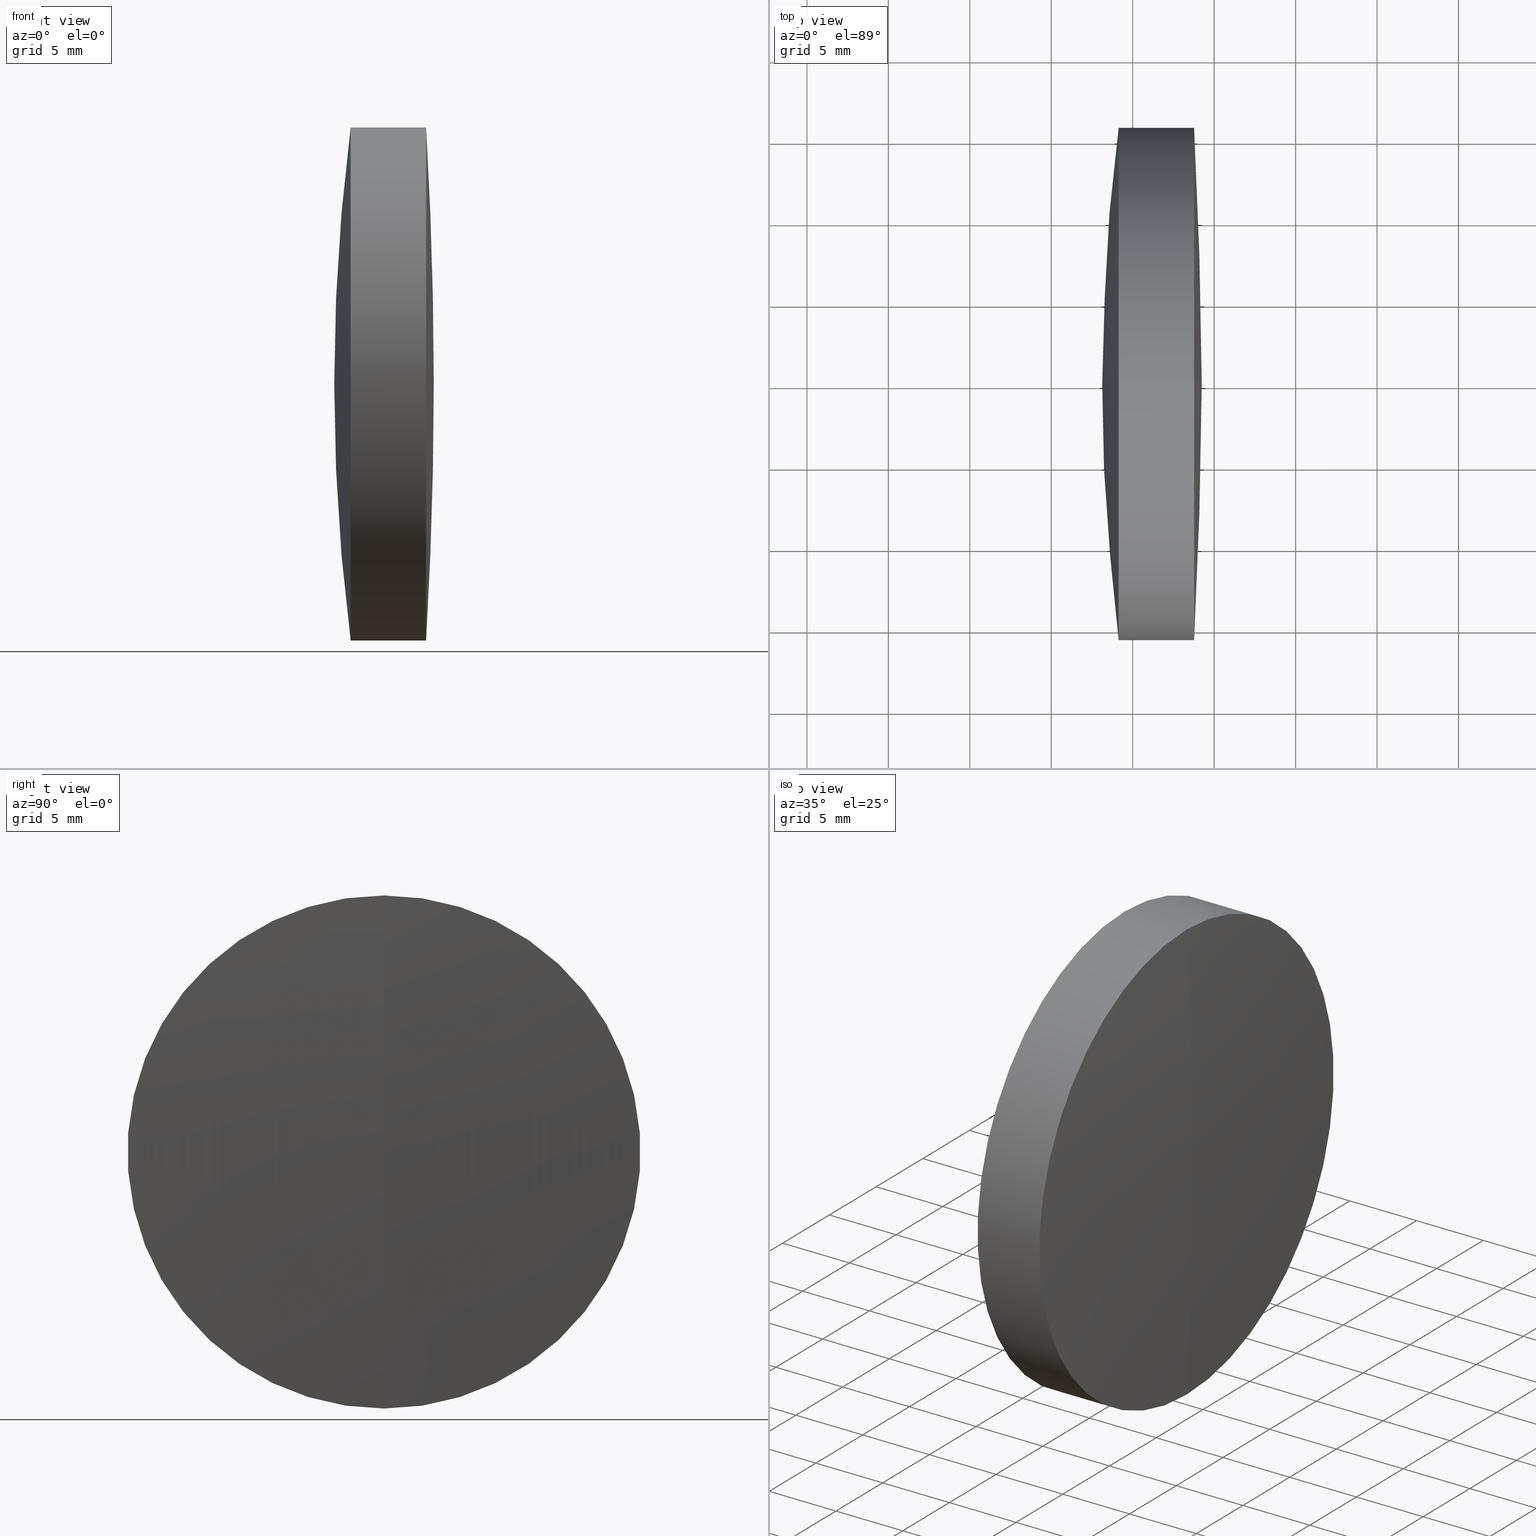
[diagram: canonical four-view strip — front | top / right | iso, engineering-drawing reading convention]
A machine part, canonical four-view strip (front | top / right | iso — engineering-drawing reading convention). The complete STEP part file that produces these views, byte-faithful:
ISO-10303-21;
HEADER;
FILE_DESCRIPTION (( 'STEP AP214' ),
    '1' );
FILE_NAME ('145070.STEP',
    '2019-05-15T05:07:34',
    ( 'user' ),
    ( '΢���й�' ),
    'SwSTEP 2.0',
    'SolidWorks 2016',
    '' );
FILE_SCHEMA (( 'AUTOMOTIVE_DESIGN' ));
ENDSEC;

DATA;
#1 = DIRECTION ( 'NONE',  ( 0.0000000000000000000, -1.224646799147353200E-016, 1.000000000000000000 ) ) ;
#2 = VERTEX_POINT ( 'NONE', #147 ) ;
#3 = EDGE_LOOP ( 'NONE', ( #88, #239, #39 ) ) ;
#4 =( GEOMETRIC_REPRESENTATION_CONTEXT ( 3 ) GLOBAL_UNCERTAINTY_ASSIGNED_CONTEXT ( ( #298 ) ) GLOBAL_UNIT_ASSIGNED_CONTEXT ( ( #202, #297, #296 ) ) REPRESENTATION_CONTEXT ( 'NONE', 'WORKASPACE' ) );
#5 = CARTESIAN_POINT ( 'NONE',  ( -0.5519199926577972300, 0.0000000000000000000, 15.74999999999999300 ) ) ;
#6 = ADVANCED_FACE ( 'NONE', ( #157 ), #175, .T. ) ;
#7 = CARTESIAN_POINT ( 'NONE',  ( 180.9032281870270000, 0.0000000000000000000, 2.168404344971008900E-016 ) ) ;
#8 = EDGE_LOOP ( 'NONE', ( #80, #92, #136 ) ) ;
#9 = DIRECTION ( 'NONE',  ( 0.0000000000000000000, 1.000000000000000000, 0.0000000000000000000 ) ) ;
#10 = VERTEX_POINT ( 'NONE', #319 ) ;
#11 = CARTESIAN_POINT ( 'NONE',  ( 180.9032281870270000, 0.0000000000000000000, 2.168404344971008900E-016 ) ) ;
#12 = LINE ( 'NONE', #311, #223 ) ;
#13 = CIRCLE ( 'NONE', #116, 81.33599999999999900 ) ;
#14 = DIRECTION ( 'NONE',  ( -1.000000000000000000, -0.0000000000000000000, -0.0000000000000000000 ) ) ;
#15 = AXIS2_PLACEMENT_3D ( 'NONE', #79, #249, #52 ) ;
#16 = DIRECTION ( 'NONE',  ( 0.0000000000000000000, 0.0000000000000000000, 1.000000000000000000 ) ) ;
#17 = CARTESIAN_POINT ( 'NONE',  ( -0.5519199926577972300, 1.928818708657080600E-015, -15.74999999999999300 ) ) ;
#18 = EDGE_CURVE ( 'NONE', #2, #87, #149, .T. ) ;
#19 = DIRECTION ( 'NONE',  ( -1.000000000000000000, -0.0000000000000000000, -0.0000000000000000000 ) ) ;
#20 = SURFACE_SIDE_STYLE ('',( #250 ) ) ;
#21 = CARTESIAN_POINT ( 'NONE',  ( 260.6997343511442300, 0.0000000000000000000, 0.0000000000000000000 ) ) ;
#22 = PRODUCT_CONTEXT ( 'NONE', #66, 'mechanical' ) ;
#23 = DIRECTION ( 'NONE',  ( 0.0000000000000000000, 0.0000000000000000000, 1.000000000000000000 ) ) ;
#24 = DIRECTION ( 'NONE',  ( 0.0000000000000000000, 1.000000000000000000, 0.0000000000000000000 ) ) ;
#25 =( LENGTH_UNIT ( ) NAMED_UNIT ( * ) SI_UNIT ( .MILLI., .METRE. ) );
#26 = PRODUCT_DEFINITION_SHAPE ( 'NONE', 'NONE',  #324 ) ;
#27 = AXIS2_PLACEMENT_3D ( 'NONE', #216, #102, #188 ) ;
#28 = DIRECTION ( 'NONE',  ( -1.000000000000000000, -0.0000000000000000000, -0.0000000000000000000 ) ) ;
#29 =( GEOMETRIC_REPRESENTATION_CONTEXT ( 3 ) GLOBAL_UNCERTAINTY_ASSIGNED_CONTEXT ( ( #54 ) ) GLOBAL_UNIT_ASSIGNED_CONTEXT ( ( #34, #168, #138 ) ) REPRESENTATION_CONTEXT ( 'NONE', 'WORKASPACE' ) );
#30 = ORIENTED_EDGE ( 'NONE', *, *, #299, .T. ) ;
#31 = VERTEX_POINT ( 'NONE', #293 ) ;
#32 = LINE ( 'NONE', #17, #125 ) ;
#33 = AXIS2_PLACEMENT_3D ( 'NONE', #191, #346, #158 ) ;
#34 =( LENGTH_UNIT ( ) NAMED_UNIT ( * ) SI_UNIT ( .MILLI., .METRE. ) );
#35 = DIRECTION ( 'NONE',  ( -0.0000000000000000000, -1.000000000000000000, -0.0000000000000000000 ) ) ;
#36 = CIRCLE ( 'NONE', #90, 263.9880000000000000 ) ;
#37 = DIRECTION ( 'NONE',  ( -1.000000000000000000, -0.0000000000000000000, -0.0000000000000000000 ) ) ;
#38 = SURFACE_SIDE_STYLE ('',( #190 ) ) ;
#39 = ORIENTED_EDGE ( 'NONE', *, *, #69, .F. ) ;
#40 = VERTEX_POINT ( 'NONE', #47 ) ;
#41 =( NAMED_UNIT ( * ) PLANE_ANGLE_UNIT ( ) SI_UNIT ( $, .RADIAN. ) );
#42 = VECTOR ( 'NONE', #182, 1000.000000000000000 ) ;
#43 = DIRECTION ( 'NONE',  ( 0.0000000000000000000, 1.000000000000000000, 0.0000000000000000000 ) ) ;
#44 = PRODUCT_RELATED_PRODUCT_CATEGORY ( 'part', '', ( #305 ) ) ;
#45 = ORIENTED_EDGE ( 'NONE', *, *, #339, .T. ) ;
#46 = CIRCLE ( 'NONE', #276, 123.6890000000000100 ) ;
#47 = CARTESIAN_POINT ( 'NONE',  ( 260.6997343511442300, 1.928818708657080600E-015, -15.74999999999999300 ) ) ;
#48 = CARTESIAN_POINT ( 'NONE',  ( -0.5519199926577972300, 0.0000000000000000000, 0.0000000000000000000 ) ) ;
#49 = CYLINDRICAL_SURFACE ( 'NONE', #204, 15.74999999999999300 ) ;
#50 = SHAPE_DEFINITION_REPRESENTATION ( #26, #194 ) ;
#51 = APPLICATION_PROTOCOL_DEFINITION ( 'draft international standard', 'automotive_design', 1998, #75 ) ;
#52 = DIRECTION ( 'NONE',  ( 0.0000000000000000000, -1.224646799147353500E-016, 1.000000000000000000 ) ) ;
#53 = AXIS2_PLACEMENT_3D ( 'NONE', #263, #98, #1 ) ;
#54 = UNCERTAINTY_MEASURE_WITH_UNIT (LENGTH_MEASURE( 1.000000000000000100E-005 ), #34, 'distance_accuracy_value', 'NONE');
#55 = AXIS2_PLACEMENT_3D ( 'NONE', #176, #126, #238 ) ;
#56 = CIRCLE ( 'NONE', #15, 263.9880000000000000 ) ;
#57 = EDGE_LOOP ( 'NONE', ( #313, #71, #174 ) ) ;
#58 = SURFACE_STYLE_USAGE ( .BOTH. , #170 ) ;
#59 = AXIS2_PLACEMENT_3D ( 'NONE', #11, #24, #86 ) ;
#60 = DIRECTION ( 'NONE',  ( 0.0000000000000000000, 0.0000000000000000000, 1.000000000000000000 ) ) ;
#61 = AXIS2_PLACEMENT_3D ( 'NONE', #122, #261, #60 ) ;
#62 = CARTESIAN_POINT ( 'NONE',  ( -0.5519199926577972300, 0.0000000000000000000, 0.0000000000000000000 ) ) ;
#63 = SPHERICAL_SURFACE ( 'NONE', #294, 81.33599999999999900 ) ;
#64 = DIRECTION ( 'NONE',  ( -1.000000000000000000, -0.0000000000000000000, -0.0000000000000000000 ) ) ;
#65 = AXIS2_PLACEMENT_3D ( 'NONE', #124, #340, #345 ) ;
#66 = APPLICATION_CONTEXT ( 'automotive_design' ) ;
#67 = DIRECTION ( 'NONE',  ( -1.000000000000000000, -0.0000000000000000000, -0.0000000000000000000 ) ) ;
#68 = AXIS2_PLACEMENT_3D ( 'NONE', #150, #115, #205 ) ;
#69 = EDGE_CURVE ( 'NONE', #2, #328, #46, .T. ) ;
#70 = CARTESIAN_POINT ( 'NONE',  ( 180.9032281870270000, 0.0000000000000000000, 2.168404344971008900E-016 ) ) ;
#71 = ORIENTED_EDGE ( 'NONE', *, *, #123, .T. ) ;
#72 = ORIENTED_EDGE ( 'NONE', *, *, #137, .T. ) ;
#73 = EDGE_CURVE ( 'NONE', #40, #180, #323, .T. ) ;
#74 = CIRCLE ( 'NONE', #33, 15.75000000000000000 ) ;
#75 = APPLICATION_CONTEXT ( 'automotive_design' ) ;
#76 = AXIS2_PLACEMENT_3D ( 'NONE', #94, #273, #95 ) ;
#77 = APPLICATION_PROTOCOL_DEFINITION ( 'draft international standard', 'automotive_design', 1998, #66 ) ;
#78 = EDGE_CURVE ( 'NONE', #148, #31, #181, .T. ) ;
#79 = CARTESIAN_POINT ( 'NONE',  ( 0.2512281870269972300, 0.0000000000000000000, 0.0000000000000000000 ) ) ;
#80 = ORIENTED_EDGE ( 'NONE', *, *, #333, .F. ) ;
#81 = STYLED_ITEM ( 'NONE', ( #274 ), #141 ) ;
#82 = CIRCLE ( 'NONE', #304, 15.75000000000004300 ) ;
#83 = ORIENTED_EDGE ( 'NONE', *, *, #280, .T. ) ;
#84 = AXIS2_PLACEMENT_3D ( 'NONE', #278, #9, #199 ) ;
#85 = CIRCLE ( 'NONE', #53, 81.33599999999999900 ) ;
#86 = DIRECTION ( 'NONE',  ( 0.0000000000000000000, 0.0000000000000000000, 1.000000000000000000 ) ) ;
#87 = VERTEX_POINT ( 'NONE', #140 ) ;
#88 = ORIENTED_EDGE ( 'NONE', *, *, #18, .T. ) ;
#89 = DIRECTION ( 'NONE',  ( 0.0000000000000000000, -1.000000000000000000, 0.0000000000000000000 ) ) ;
#90 = AXIS2_PLACEMENT_3D ( 'NONE', #287, #89, #262 ) ;
#91 = FILL_AREA_STYLE ('',( #155 ) ) ;
#92 = ORIENTED_EDGE ( 'NONE', *, *, #159, .T. ) ;
#93 = DIRECTION ( 'NONE',  ( -1.000000000000000000, -0.0000000000000000000, -0.0000000000000000000 ) ) ;
#94 = CARTESIAN_POINT ( 'NONE',  ( 0.2512281870269972300, 0.0000000000000000000, 0.0000000000000000000 ) ) ;
#95 = DIRECTION ( 'NONE',  ( 0.0000000000000000000, 0.0000000000000000000, 1.000000000000000000 ) ) ;
#96 = ORIENTED_EDGE ( 'NONE', *, *, #320, .T. ) ;
#97 = ORIENTED_EDGE ( 'NONE', *, *, #299, .F. ) ;
#98 = DIRECTION ( 'NONE',  ( -0.0000000000000000000, 1.000000000000000000, 1.224646799147353200E-016 ) ) ;
#99 = AXIS2_PLACEMENT_3D ( 'NONE', #229, #35, #198 ) ;
#100 = DIRECTION ( 'NONE',  ( 0.0000000000000000000, -1.224646799147353000E-016, 1.000000000000000000 ) ) ;
#101 = CARTESIAN_POINT ( 'NONE',  ( 260.6997343511442300, 0.0000000000000000000, 15.75000000000000000 ) ) ;
#102 = DIRECTION ( 'NONE',  ( 0.0000000000000000000, 0.0000000000000000000, 1.000000000000000000 ) ) ;
#103 = ORIENTED_EDGE ( 'NONE', *, *, #231, .T. ) ;
#104 = FACE_OUTER_BOUND ( 'NONE', #109, .T. ) ;
#105 = CARTESIAN_POINT ( 'NONE',  ( 381.8182281870269900, 0.0000000000000000000, 1.385258890006694100E-016 ) ) ;
#106 = EDGE_CURVE ( 'NONE', #114, #230, #111, .T. ) ;
#107 = STYLED_ITEM ( 'NONE', ( #330 ), #194 ) ;
#108 = VECTOR ( 'NONE', #67, 1000.000000000000000 ) ;
#109 = EDGE_LOOP ( 'NONE', ( #97, #45, #72, #244 ) ) ;
#110 = DIRECTION ( 'NONE',  ( 0.0000000000000000000, -1.000000000000000000, -1.224646799147353200E-016 ) ) ;
#111 = CIRCLE ( 'NONE', #237, 15.75000000000000000 ) ;
#112 = DIRECTION ( 'NONE',  ( -0.0000000000000000000, 1.000000000000000000, 1.224646799147353200E-016 ) ) ;
#113 = VERTEX_POINT ( 'NONE', #270 ) ;
#114 = VERTEX_POINT ( 'NONE', #101 ) ;
#115 = DIRECTION ( 'NONE',  ( -1.000000000000000000, -0.0000000000000000000, -0.0000000000000000000 ) ) ;
#116 = AXIS2_PLACEMENT_3D ( 'NONE', #7, #112, #100 ) ;
#117 = CARTESIAN_POINT ( 'NONE',  ( 180.9032281870270000, 0.0000000000000000000, 2.168404344971008900E-016 ) ) ;
#118 = SPHERICAL_SURFACE ( 'NONE', #99, 123.6890000000000100 ) ;
#119 = DIRECTION ( 'NONE',  ( -1.000000000000000000, -0.0000000000000000000, -0.0000000000000000000 ) ) ;
#120 = DIRECTION ( 'NONE',  ( 0.0000000000000000000, 0.0000000000000000000, 1.000000000000000000 ) ) ;
#121 = AXIS2_PLACEMENT_3D ( 'NONE', #206, #14, #178 ) ;
#122 = CARTESIAN_POINT ( 'NONE',  ( 263.7689726445872200, 0.0000000000000000000, 0.0000000000000000000 ) ) ;
#123 = EDGE_CURVE ( 'NONE', #113, #114, #129, .T. ) ;
#124 = CARTESIAN_POINT ( 'NONE',  ( 260.6997343511442300, 0.0000000000000000000, 0.0000000000000000000 ) ) ;
#125 = VECTOR ( 'NONE', #245, 1000.000000000000000 ) ;
#126 = DIRECTION ( 'NONE',  ( 0.0000000000000000000, -1.000000000000000000, 0.0000000000000000000 ) ) ;
#127 =( NAMED_UNIT ( * ) PLANE_ANGLE_UNIT ( ) SI_UNIT ( $, .RADIAN. ) );
#128 = FACE_OUTER_BOUND ( 'NONE', #318, .T. ) ;
#129 = CIRCLE ( 'NONE', #55, 81.33599999999999900 ) ;
#130 = DIRECTION ( 'NONE',  ( 0.0000000000000000000, -1.000000000000000000, 0.0000000000000000000 ) ) ;
#131 = AXIS2_PLACEMENT_3D ( 'NONE', #209, #19, #16 ) ;
#132 = ORIENTED_EDGE ( 'NONE', *, *, #78, .F. ) ;
#133 = CYLINDRICAL_SURFACE ( 'NONE', #68, 15.75000000000000000 ) ;
#134 = FACE_OUTER_BOUND ( 'NONE', #8, .T. ) ;
#135 = COLOUR_RGB ( '',1.000000000000000000, 1.000000000000000000, 1.000000000000000000 ) ;
#136 = ORIENTED_EDGE ( 'NONE', *, *, #73, .T. ) ;
#137 = EDGE_CURVE ( 'NONE', #114, #87, #212, .T. ) ;
#138 =( NAMED_UNIT ( * ) SI_UNIT ( $, .STERADIAN. ) SOLID_ANGLE_UNIT ( ) );
#139 = FILL_AREA_STYLE_COLOUR ( '', #135 ) ;
#140 = CARTESIAN_POINT ( 'NONE',  ( 259.1360932977123100, -1.928818708657084900E-015, 15.75000000000002800 ) ) ;
#141 = MANIFOLD_SOLID_BREP ( '��ת3', #291 ) ;
#142 = ADVANCED_FACE ( 'NONE', ( #258 ), #63, .T. ) ;
#143 = EDGE_CURVE ( 'NONE', #180, #40, #82, .T. ) ;
#144 = SURFACE_STYLE_USAGE ( .BOTH. , #20 ) ;
#145 = ADVANCED_FACE ( 'NONE', ( #331 ), #224, .T. ) ;
#146 = ORIENTED_EDGE ( 'NONE', *, *, #73, .F. ) ;
#147 = CARTESIAN_POINT ( 'NONE',  ( 259.1360932977123100, 0.0000000000000000000, -15.75000000000002800 ) ) ;
#148 = VERTEX_POINT ( 'NONE', #307 ) ;
#149 = CIRCLE ( 'NONE', #131, 15.75000000000000000 ) ;
#150 = CARTESIAN_POINT ( 'NONE',  ( 124.5233095260452400, 0.0000000000000000000, 0.0000000000000000000 ) ) ;
#151 = PRODUCT_DEFINITION_FORMATION_WITH_SPECIFIED_SOURCE ( '�κ�', '', #305, .NOT_KNOWN. ) ;
#152 = FACE_OUTER_BOUND ( 'NONE', #3, .T. ) ;
#153 = MANIFOLD_SOLID_BREP ( '��ת1', #186 ) ;
#154 = DIRECTION ( 'NONE',  ( 0.0000000000000000000, 1.000000000000000000, 0.0000000000000000000 ) ) ;
#155 = FILL_AREA_STYLE_COLOUR ( '', #222 ) ;
#156 = ORIENTED_EDGE ( 'NONE', *, *, #106, .F. ) ;
#157 = FACE_OUTER_BOUND ( 'NONE', #226, .T. ) ;
#158 = DIRECTION ( 'NONE',  ( 0.0000000000000000000, 0.0000000000000000000, 1.000000000000000000 ) ) ;
#159 = EDGE_CURVE ( 'NONE', #10, #40, #13, .T. ) ;
#160 = MECHANICAL_DESIGN_GEOMETRIC_PRESENTATION_REPRESENTATION (  '', ( #329 ), #29 ) ;
#161 = AXIS2_PLACEMENT_3D ( 'NONE', #173, #110, #334 ) ;
#162 = EDGE_LOOP ( 'NONE', ( #243, #197, #335, #146 ) ) ;
#163 = DIRECTION ( 'NONE',  ( 0.0000000000000000000, 1.000000000000000000, 0.0000000000000000000 ) ) ;
#164 = ORIENTED_EDGE ( 'NONE', *, *, #69, .T. ) ;
#165 = CIRCLE ( 'NONE', #61, 15.74999999999994100 ) ;
#166 = EDGE_LOOP ( 'NONE', ( #169, #281, #217 ) ) ;
#167 = CARTESIAN_POINT ( 'NONE',  ( 381.8182281870269900, 0.0000000000000000000, 1.385258890006694100E-016 ) ) ;
#168 =( NAMED_UNIT ( * ) PLANE_ANGLE_UNIT ( ) SI_UNIT ( $, .RADIAN. ) );
#169 = ORIENTED_EDGE ( 'NONE', *, *, #159, .F. ) ;
#170 = SURFACE_SIDE_STYLE ('',( #177 ) ) ;
#171 = ADVANCED_FACE ( 'NONE', ( #128 ), #133, .T. ) ;
#172 = CARTESIAN_POINT ( 'NONE',  ( 260.6997343511442300, 1.928818708657081300E-015, -15.75000000000000000 ) ) ;
#173 = CARTESIAN_POINT ( 'NONE',  ( 381.8182281870269900, 0.0000000000000000000, 1.385258890006694100E-016 ) ) ;
#174 = ORIENTED_EDGE ( 'NONE', *, *, #339, .F. ) ;
#175 = SPHERICAL_SURFACE ( 'NONE', #76, 263.9880000000000000 ) ;
#176 = CARTESIAN_POINT ( 'NONE',  ( 180.9032281870270000, 0.0000000000000000000, 2.168404344971008900E-016 ) ) ;
#177 = SURFACE_STYLE_FILL_AREA ( #332 ) ;
#178 = DIRECTION ( 'NONE',  ( 0.0000000000000000000, 0.0000000000000000000, 1.000000000000000000 ) ) ;
#179 = PRESENTATION_LAYER_ASSIGNMENT (  '', '', ( #81 ) ) ;
#180 = VERTEX_POINT ( 'NONE', #213 ) ;
#181 = CIRCLE ( 'NONE', #271, 15.74999999999994100 ) ;
#182 = DIRECTION ( 'NONE',  ( -1.000000000000000000, -0.0000000000000000000, -0.0000000000000000000 ) ) ;
#183 = SPHERICAL_SURFACE ( 'NONE', #84, 263.9880000000000000 ) ;
#184 = CARTESIAN_POINT ( 'NONE',  ( 264.2392281870269800, 0.0000000000000000000, 1.616460296066557600E-014 ) ) ;
#185 = ADVANCED_FACE ( 'NONE', ( #208 ), #183, .T. ) ;
#186 = CLOSED_SHELL ( 'NONE', ( #145, #171, #283, #289, #268, #142 ) ) ;
#187 = DIRECTION ( 'NONE',  ( -1.000000000000000000, -0.0000000000000000000, -0.0000000000000000000 ) ) ;
#188 = DIRECTION ( 'NONE',  ( 1.000000000000000000, 0.0000000000000000000, 0.0000000000000000000 ) ) ;
#189 =( LENGTH_UNIT ( ) NAMED_UNIT ( * ) SI_UNIT ( .MILLI., .METRE. ) );
#190 = SURFACE_STYLE_FILL_AREA ( #236 ) ;
#191 = CARTESIAN_POINT ( 'NONE',  ( 260.6997343511442300, 0.0000000000000000000, 0.0000000000000000000 ) ) ;
#192 = PRESENTATION_LAYER_ASSIGNMENT (  '', '', ( #329 ) ) ;
#193 = ORIENTED_EDGE ( 'NONE', *, *, #106, .T. ) ;
#194 = ADVANCED_BREP_SHAPE_REPRESENTATION ( '145070', ( #153, #141, #27 ), #347 ) ;
#195 = MECHANICAL_DESIGN_GEOMETRIC_PRESENTATION_REPRESENTATION (  '', ( #81 ), #242 ) ;
#196 = PRODUCT_DEFINITION_CONTEXT ( 'detailed design', #75, 'design' ) ;
#197 = ORIENTED_EDGE ( 'NONE', *, *, #78, .T. ) ;
#198 = DIRECTION ( 'NONE',  ( 0.0000000000000000000, 0.0000000000000000000, -1.000000000000000000 ) ) ;
#199 = DIRECTION ( 'NONE',  ( 0.0000000000000000000, 0.0000000000000000000, 1.000000000000000000 ) ) ;
#200 = ADVANCED_FACE ( 'NONE', ( #266 ), #275, .F. ) ;
#201 = EDGE_CURVE ( 'NONE', #309, #31, #36, .T. ) ;
#202 =( LENGTH_UNIT ( ) NAMED_UNIT ( * ) SI_UNIT ( .MILLI., .METRE. ) );
#203 = SPHERICAL_SURFACE ( 'NONE', #316, 81.33599999999999900 ) ;
#204 = AXIS2_PLACEMENT_3D ( 'NONE', #62, #37, #234 ) ;
#205 = DIRECTION ( 'NONE',  ( 0.0000000000000000000, 0.0000000000000000000, 1.000000000000000000 ) ) ;
#206 = CARTESIAN_POINT ( 'NONE',  ( 259.1360932977123100, 0.0000000000000000000, 0.0000000000000000000 ) ) ;
#207 = EDGE_LOOP ( 'NONE', ( #342, #96, #164 ) ) ;
#208 = FACE_OUTER_BOUND ( 'NONE', #314, .T. ) ;
#209 = CARTESIAN_POINT ( 'NONE',  ( 259.1360932977123100, 0.0000000000000000000, 0.0000000000000000000 ) ) ;
#210 = CARTESIAN_POINT ( 'NONE',  ( 124.5233095260452400, 0.0000000000000000000, 0.0000000000000000000 ) ) ;
#211 = DIRECTION ( 'NONE',  ( -0.0000000000000000000, -1.000000000000000000, -0.0000000000000000000 ) ) ;
#212 = LINE ( 'NONE', #214, #108 ) ;
#213 = CARTESIAN_POINT ( 'NONE',  ( 260.6997343511442300, 0.0000000000000000000, 15.74999999999999300 ) ) ;
#214 = CARTESIAN_POINT ( 'NONE',  ( 124.5233095260452400, 0.0000000000000000000, 15.75000000000000000 ) ) ;
#215 =( NAMED_UNIT ( * ) SI_UNIT ( $, .STERADIAN. ) SOLID_ANGLE_UNIT ( ) );
#216 = CARTESIAN_POINT ( 'NONE',  ( 0.0000000000000000000, 0.0000000000000000000, 0.0000000000000000000 ) ) ;
#217 = ORIENTED_EDGE ( 'NONE', *, *, #143, .T. ) ;
#218 = FILL_AREA_STYLE_COLOUR ( '', #255 ) ;
#219 = EDGE_LOOP ( 'NONE', ( #232, #83, #325, #303 ) ) ;
#220 = CYLINDRICAL_SURFACE ( 'NONE', #310, 15.74999999999999300 ) ;
#221 = AXIS2_PLACEMENT_3D ( 'NONE', #210, #317, #228 ) ;
#222 = COLOUR_RGB ( '',1.000000000000000000, 1.000000000000000000, 1.000000000000000000 ) ;
#223 = VECTOR ( 'NONE', #93, 1000.000000000000000 ) ;
#224 = SPHERICAL_SURFACE ( 'NONE', #288, 81.33599999999999900 ) ;
#225 = EDGE_LOOP ( 'NONE', ( #248, #103, #156 ) ) ;
#226 = EDGE_LOOP ( 'NONE', ( #264, #272, #132 ) ) ;
#227 = PRESENTATION_STYLE_ASSIGNMENT (( #58 ) ) ;
#228 = DIRECTION ( 'NONE',  ( 0.0000000000000000000, 0.0000000000000000000, 1.000000000000000000 ) ) ;
#229 = CARTESIAN_POINT ( 'NONE',  ( 381.8182281870269900, 0.0000000000000000000, 1.385258890006694100E-016 ) ) ;
#230 = VERTEX_POINT ( 'NONE', #172 ) ;
#231 = EDGE_CURVE ( 'NONE', #113, #230, #85, .T. ) ;
#232 = ORIENTED_EDGE ( 'NONE', *, *, #267, .T. ) ;
#233 = PRESENTATION_LAYER_ASSIGNMENT (  '', '', ( #107 ) ) ;
#234 = DIRECTION ( 'NONE',  ( 0.0000000000000000000, 0.0000000000000000000, 1.000000000000000000 ) ) ;
#235 = ADVANCED_FACE ( 'NONE', ( #254 ), #49, .T. ) ;
#236 = FILL_AREA_STYLE ('',( #218 ) ) ;
#237 = AXIS2_PLACEMENT_3D ( 'NONE', #21, #187, #343 ) ;
#238 = DIRECTION ( 'NONE',  ( 0.0000000000000000000, 0.0000000000000000000, -1.000000000000000000 ) ) ;
#239 = ORIENTED_EDGE ( 'NONE', *, *, #241, .T. ) ;
#240 = CIRCLE ( 'NONE', #161, 123.6890000000000100 ) ;
#241 = EDGE_CURVE ( 'NONE', #87, #328, #240, .T. ) ;
#242 =( GEOMETRIC_REPRESENTATION_CONTEXT ( 3 ) GLOBAL_UNCERTAINTY_ASSIGNED_CONTEXT ( ( #322 ) ) GLOBAL_UNIT_ASSIGNED_CONTEXT ( ( #189, #41, #215 ) ) REPRESENTATION_CONTEXT ( 'NONE', 'WORKASPACE' ) );
#243 = ORIENTED_EDGE ( 'NONE', *, *, #280, .F. ) ;
#244 = ORIENTED_EDGE ( 'NONE', *, *, #18, .F. ) ;
#245 = DIRECTION ( 'NONE',  ( -1.000000000000000000, -0.0000000000000000000, -0.0000000000000000000 ) ) ;
#246 = CARTESIAN_POINT ( 'NONE',  ( 258.1292281870269700, 0.0000000000000000000, -7.435241007986179600E-015 ) ) ;
#247 = CARTESIAN_POINT ( 'NONE',  ( 180.9032281870270000, 0.0000000000000000000, 2.168404344971008900E-016 ) ) ;
#248 = ORIENTED_EDGE ( 'NONE', *, *, #123, .F. ) ;
#249 = DIRECTION ( 'NONE',  ( -0.0000000000000000000, 1.000000000000000000, 1.224646799147353200E-016 ) ) ;
#250 = SURFACE_STYLE_FILL_AREA ( #91 ) ;
#251 = MECHANICAL_DESIGN_GEOMETRIC_PRESENTATION_REPRESENTATION (  '', ( #107 ), #4 ) ;
#252 = ORIENTED_EDGE ( 'NONE', *, *, #267, .F. ) ;
#253 = ORIENTED_EDGE ( 'NONE', *, *, #201, .F. ) ;
#254 = FACE_OUTER_BOUND ( 'NONE', #162, .T. ) ;
#255 = COLOUR_RGB ( '',1.000000000000000000, 1.000000000000000000, 1.000000000000000000 ) ;
#256 = DIRECTION ( 'NONE',  ( 0.0000000000000000000, 0.0000000000000000000, 1.000000000000000000 ) ) ;
#257 = ADVANCED_FACE ( 'NONE', ( #301 ), #220, .T. ) ;
#258 = FACE_OUTER_BOUND ( 'NONE', #57, .T. ) ;
#259 = DIRECTION ( 'NONE',  ( 0.0000000000000000000, 0.0000000000000000000, 1.000000000000000000 ) ) ;
#260 = AXIS2_PLACEMENT_3D ( 'NONE', #105, #211, #341 ) ;
#261 = DIRECTION ( 'NONE',  ( -1.000000000000000000, -0.0000000000000000000, -0.0000000000000000000 ) ) ;
#262 = DIRECTION ( 'NONE',  ( 0.0000000000000000000, 0.0000000000000000000, -1.000000000000000000 ) ) ;
#263 = CARTESIAN_POINT ( 'NONE',  ( 180.9032281870270000, 0.0000000000000000000, 2.168404344971008900E-016 ) ) ;
#264 = ORIENTED_EDGE ( 'NONE', *, *, #336, .F. ) ;
#265 = UNCERTAINTY_MEASURE_WITH_UNIT (LENGTH_MEASURE( 1.000000000000000100E-005 ), #25, 'distance_accuracy_value', 'NONE');
#266 = FACE_OUTER_BOUND ( 'NONE', #166, .T. ) ;
#267 = EDGE_CURVE ( 'NONE', #31, #148, #165, .T. ) ;
#268 = ADVANCED_FACE ( 'NONE', ( #104 ), #337, .T. ) ;
#269 = CIRCLE ( 'NONE', #121, 15.75000000000000000 ) ;
#270 = CARTESIAN_POINT ( 'NONE',  ( 262.2392281870269800, 0.0000000000000000000, 5.197234037269557100E-015 ) ) ;
#271 = AXIS2_PLACEMENT_3D ( 'NONE', #290, #119, #315 ) ;
#272 = ORIENTED_EDGE ( 'NONE', *, *, #201, .T. ) ;
#273 = DIRECTION ( 'NONE',  ( 0.0000000000000000000, 1.000000000000000000, 0.0000000000000000000 ) ) ;
#274 = PRESENTATION_STYLE_ASSIGNMENT (( #144 ) ) ;
#275 = SPHERICAL_SURFACE ( 'NONE', #59, 81.33599999999999900 ) ;
#276 = AXIS2_PLACEMENT_3D ( 'NONE', #167, #292, #120 ) ;
#277 = CIRCLE ( 'NONE', #279, 81.33599999999999900 ) ;
#278 = CARTESIAN_POINT ( 'NONE',  ( 0.2512281870269972300, 0.0000000000000000000, 0.0000000000000000000 ) ) ;
#279 = AXIS2_PLACEMENT_3D ( 'NONE', #117, #130, #302 ) ;
#280 = EDGE_CURVE ( 'NONE', #148, #40, #32, .T. ) ;
#281 = ORIENTED_EDGE ( 'NONE', *, *, #333, .T. ) ;
#282 = FACE_OUTER_BOUND ( 'NONE', #207, .T. ) ;
#283 = ADVANCED_FACE ( 'NONE', ( #152 ), #118, .T. ) ;
#284 = ORIENTED_EDGE ( 'NONE', *, *, #336, .T. ) ;
#285 = DIRECTION ( 'NONE',  ( 0.0000000000000000000, 0.0000000000000000000, 1.000000000000000000 ) ) ;
#286 = EDGE_CURVE ( 'NONE', #31, #180, #295, .T. ) ;
#287 = CARTESIAN_POINT ( 'NONE',  ( 0.2512281870269972300, 0.0000000000000000000, 0.0000000000000000000 ) ) ;
#288 = AXIS2_PLACEMENT_3D ( 'NONE', #247, #163, #259 ) ;
#289 = ADVANCED_FACE ( 'NONE', ( #282 ), #344, .T. ) ;
#290 = CARTESIAN_POINT ( 'NONE',  ( 263.7689726445872200, 0.0000000000000000000, 0.0000000000000000000 ) ) ;
#291 = CLOSED_SHELL ( 'NONE', ( #185, #257, #326, #200, #235, #6 ) ) ;
#292 = DIRECTION ( 'NONE',  ( 0.0000000000000000000, 1.000000000000000000, -0.0000000000000000000 ) ) ;
#293 = CARTESIAN_POINT ( 'NONE',  ( 263.7689726445872200, 0.0000000000000000000, 15.74999999999994100 ) ) ;
#294 = AXIS2_PLACEMENT_3D ( 'NONE', #338, #154, #23 ) ;
#295 = LINE ( 'NONE', #5, #42 ) ;
#296 =( NAMED_UNIT ( * ) SI_UNIT ( $, .STERADIAN. ) SOLID_ANGLE_UNIT ( ) );
#297 =( NAMED_UNIT ( * ) PLANE_ANGLE_UNIT ( ) SI_UNIT ( $, .RADIAN. ) );
#298 = UNCERTAINTY_MEASURE_WITH_UNIT (LENGTH_MEASURE( 1.000000000000000100E-005 ), #202, 'distance_accuracy_value', 'NONE');
#299 = EDGE_CURVE ( 'NONE', #230, #2, #12, .T. ) ;
#300 =( NAMED_UNIT ( * ) SI_UNIT ( $, .STERADIAN. ) SOLID_ANGLE_UNIT ( ) );
#301 = FACE_OUTER_BOUND ( 'NONE', #219, .T. ) ;
#302 = DIRECTION ( 'NONE',  ( 0.0000000000000000000, 0.0000000000000000000, -1.000000000000000000 ) ) ;
#303 = ORIENTED_EDGE ( 'NONE', *, *, #286, .F. ) ;
#304 = AXIS2_PLACEMENT_3D ( 'NONE', #327, #28, #285 ) ;
#305 = PRODUCT ( '145070', '145070', '', ( #22 ) ) ;
#306 = ORIENTED_EDGE ( 'NONE', *, *, #137, .F. ) ;
#307 = CARTESIAN_POINT ( 'NONE',  ( 263.7689726445872200, 1.928818708657077400E-015, -15.74999999999994100 ) ) ;
#308 = ORIENTED_EDGE ( 'NONE', *, *, #320, .F. ) ;
#309 = VERTEX_POINT ( 'NONE', #184 ) ;
#310 = AXIS2_PLACEMENT_3D ( 'NONE', #48, #64, #256 ) ;
#311 = CARTESIAN_POINT ( 'NONE',  ( 124.5233095260452400, 1.928818708657081300E-015, -15.75000000000000000 ) ) ;
#312 = SURFACE_STYLE_USAGE ( .BOTH. , #38 ) ;
#313 = ORIENTED_EDGE ( 'NONE', *, *, #231, .F. ) ;
#314 = EDGE_LOOP ( 'NONE', ( #253, #284, #252 ) ) ;
#315 = DIRECTION ( 'NONE',  ( 0.0000000000000000000, 0.0000000000000000000, 1.000000000000000000 ) ) ;
#316 = AXIS2_PLACEMENT_3D ( 'NONE', #70, #43, #321 ) ;
#317 = DIRECTION ( 'NONE',  ( -1.000000000000000000, -0.0000000000000000000, -0.0000000000000000000 ) ) ;
#318 = EDGE_LOOP ( 'NONE', ( #193, #30, #308, #306 ) ) ;
#319 = CARTESIAN_POINT ( 'NONE',  ( 262.2392281870269800, 0.0000000000000000000, 5.197234037269556300E-015 ) ) ;
#320 = EDGE_CURVE ( 'NONE', #87, #2, #269, .T. ) ;
#321 = DIRECTION ( 'NONE',  ( 0.0000000000000000000, 0.0000000000000000000, 1.000000000000000000 ) ) ;
#322 = UNCERTAINTY_MEASURE_WITH_UNIT (LENGTH_MEASURE( 1.000000000000000100E-005 ), #189, 'distance_accuracy_value', 'NONE');
#323 = CIRCLE ( 'NONE', #65, 15.75000000000004300 ) ;
#324 = PRODUCT_DEFINITION ( 'δ֪', '', #151, #196 ) ;
#325 = ORIENTED_EDGE ( 'NONE', *, *, #143, .F. ) ;
#326 = ADVANCED_FACE ( 'NONE', ( #134 ), #203, .F. ) ;
#327 = CARTESIAN_POINT ( 'NONE',  ( 260.6997343511442300, 0.0000000000000000000, 0.0000000000000000000 ) ) ;
#328 = VERTEX_POINT ( 'NONE', #246 ) ;
#329 = STYLED_ITEM ( 'NONE', ( #227 ), #153 ) ;
#330 = PRESENTATION_STYLE_ASSIGNMENT (( #312 ) ) ;
#331 = FACE_OUTER_BOUND ( 'NONE', #225, .T. ) ;
#332 = FILL_AREA_STYLE ('',( #139 ) ) ;
#333 = EDGE_CURVE ( 'NONE', #10, #180, #277, .T. ) ;
#334 = DIRECTION ( 'NONE',  ( 0.0000000000000000000, 1.224646799147353200E-016, -1.000000000000000000 ) ) ;
#335 = ORIENTED_EDGE ( 'NONE', *, *, #286, .T. ) ;
#336 = EDGE_CURVE ( 'NONE', #309, #148, #56, .T. ) ;
#337 = CYLINDRICAL_SURFACE ( 'NONE', #221, 15.75000000000000000 ) ;
#338 = CARTESIAN_POINT ( 'NONE',  ( 180.9032281870270000, 0.0000000000000000000, 2.168404344971008900E-016 ) ) ;
#339 = EDGE_CURVE ( 'NONE', #230, #114, #74, .T. ) ;
#340 = DIRECTION ( 'NONE',  ( -1.000000000000000000, -0.0000000000000000000, -0.0000000000000000000 ) ) ;
#341 = DIRECTION ( 'NONE',  ( 0.0000000000000000000, 0.0000000000000000000, -1.000000000000000000 ) ) ;
#342 = ORIENTED_EDGE ( 'NONE', *, *, #241, .F. ) ;
#343 = DIRECTION ( 'NONE',  ( 0.0000000000000000000, 0.0000000000000000000, 1.000000000000000000 ) ) ;
#344 = SPHERICAL_SURFACE ( 'NONE', #260, 123.6890000000000100 ) ;
#345 = DIRECTION ( 'NONE',  ( 0.0000000000000000000, 0.0000000000000000000, 1.000000000000000000 ) ) ;
#346 = DIRECTION ( 'NONE',  ( -1.000000000000000000, -0.0000000000000000000, -0.0000000000000000000 ) ) ;
#347 =( GEOMETRIC_REPRESENTATION_CONTEXT ( 3 ) GLOBAL_UNCERTAINTY_ASSIGNED_CONTEXT ( ( #265 ) ) GLOBAL_UNIT_ASSIGNED_CONTEXT ( ( #25, #127, #300 ) ) REPRESENTATION_CONTEXT ( 'NONE', 'WORKASPACE' ) );
ENDSEC;
END-ISO-10303-21;
